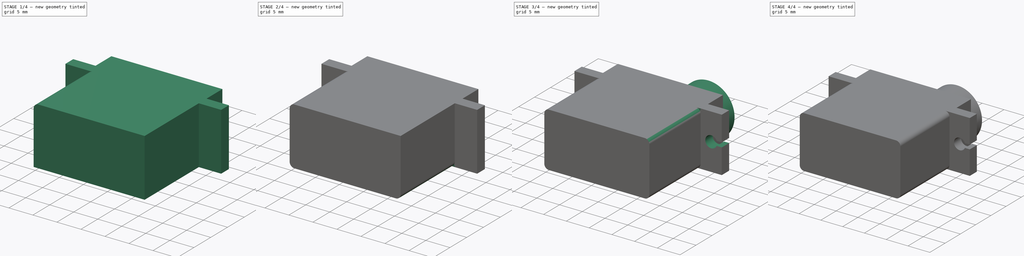
[diagram: build sequence overview — one tinted view per stage of 4, left to right]
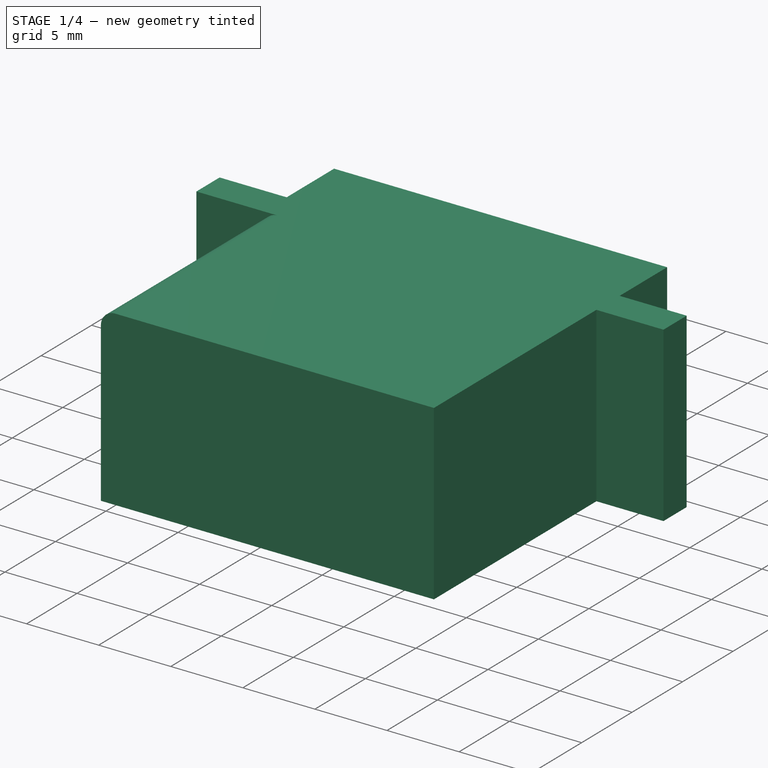
[diagram: stage 1 of 4 — iso view after this stage's code; geometry added in this stage tinted green]
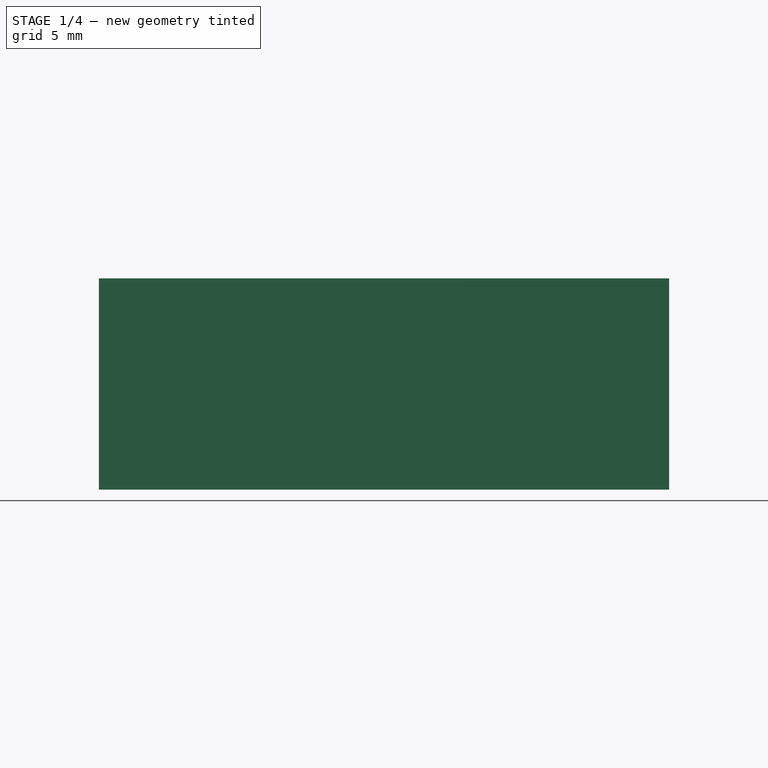
[diagram: stage 1 of 4 — front view after this stage's code; geometry added in this stage tinted green]
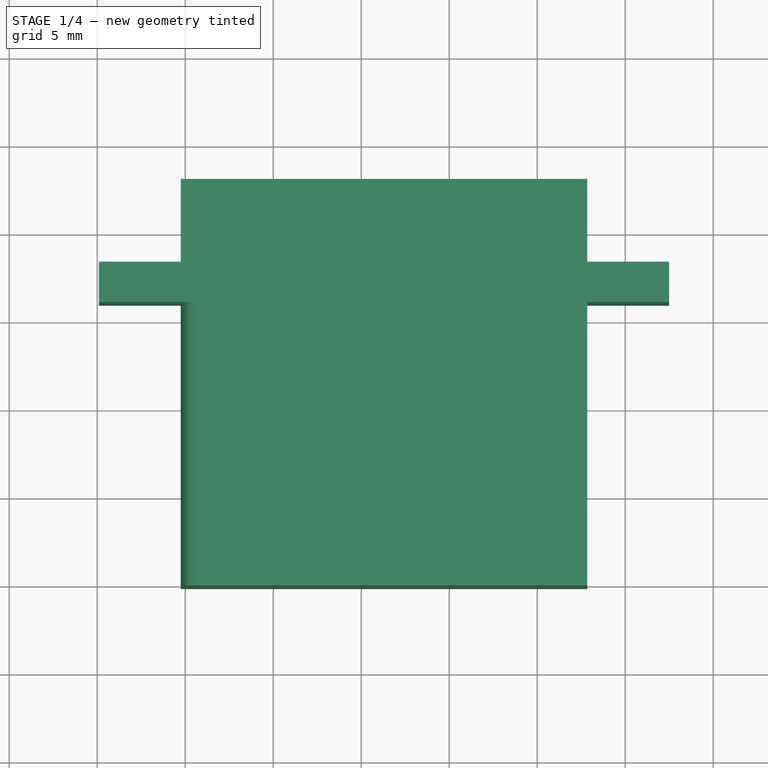
[diagram: stage 1 of 4 — top view after this stage's code; geometry added in this stage tinted green]
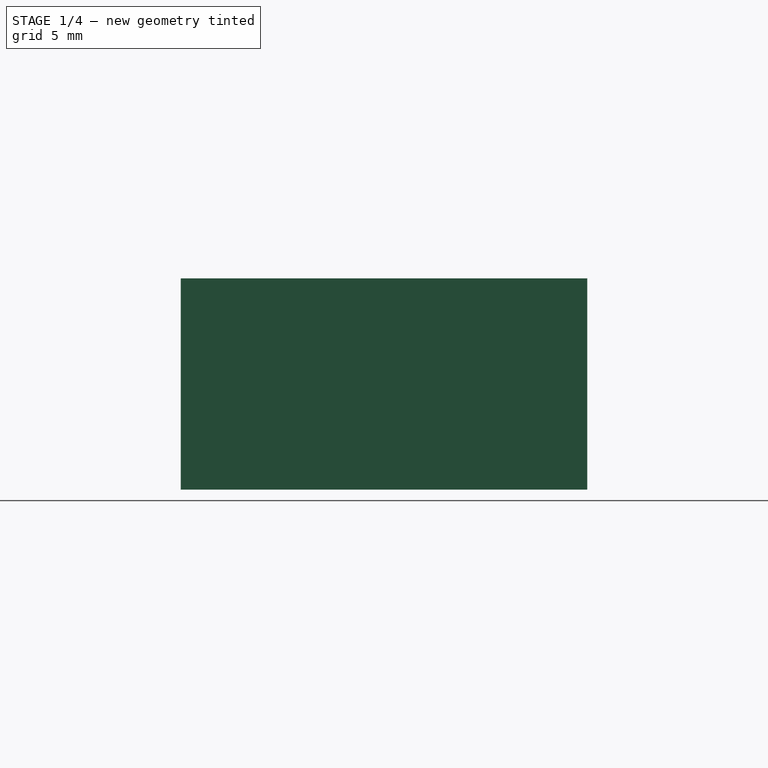
[diagram: stage 1 of 4 — right view after this stage's code; geometry added in this stage tinted green]
FCSTD DOCUMENT  (FreeCAD 0.15R4503 (Git))
Label: servo_hxt900
License: CC-BY 3.0
LicenseURL: http://creativecommons.org/licenses/by/3.0/
objects: Sketcher::SketchObject×5, PartDesign::Fillet×4, PartDesign::Pad×3, PartDesign::Pocket×2
note: 19 computed .brp shape members not serialized (recipe doc carries the construction recipe); baked Part::Feature solids carry a one-line shape summary decoded from their .brp

FEATURE [Sketcher::SketchObject] Sketch
  sketch-geometry (12):
    g0: LineSegment StartX=-15.2574 StartY=12.9721 StartZ=0 EndX=7.84256 EndY=12.9721 EndZ=0
    g1: LineSegment StartX=7.84256 StartY=12.9721 StartZ=0 EndX=7.84256 EndY=8.27206 EndZ=0
    g2: LineSegment StartX=7.84256 StartY=-10.1279 StartZ=0 EndX=-15.2574 EndY=-10.1279 EndZ=0
    g3: LineSegment StartX=-15.2574 StartY=-10.1279 StartZ=0 EndX=-15.2574 EndY=5.97206 EndZ=0
    g4: LineSegment StartX=-19.9074 StartY=8.27206 StartZ=0 EndX=-15.2574 EndY=8.27206 EndZ=0
    g5: LineSegment StartX=12.4926 StartY=8.27206 StartZ=0 EndX=12.4926 EndY=5.97206 EndZ=0
    g6: LineSegment StartX=12.4926 StartY=5.97206 StartZ=0 EndX=7.84256 EndY=5.97206 EndZ=0
    g7: LineSegment StartX=-19.9074 StartY=5.97206 StartZ=0 EndX=-19.9074 EndY=8.27206 EndZ=0
    g8: LineSegment StartX=7.84256 StartY=5.97206 StartZ=0 EndX=7.84256 EndY=-10.1279 EndZ=0
    g9: LineSegment StartX=7.84256 StartY=8.27206 StartZ=0 EndX=12.4926 EndY=8.27206 EndZ=0
    g10: LineSegment StartX=-15.2574 StartY=5.97206 StartZ=0 EndX=-19.9074 EndY=5.97206 EndZ=0
    g11: LineSegment StartX=-15.2574 StartY=8.27206 StartZ=0 EndX=-15.2574 EndY=12.9721 EndZ=0
  constraints (30):
    c: Coincident(g0,g1)
    c: Coincident(g8,g2)
    c: Coincident(g2,g3)
    c: Coincident(g11,g0)
    c: Horizontal(g0)
    c: Horizontal(g2)
    c: Vertical(g1)
    c: Vertical(g3)
    c: Distance(g2) = 23.1
    c: Coincident(g9,g5)
    c: Coincident(g5,g6)
    c: Coincident(g10,g7)
    c: Coincident(g7,g4)
    c: Horizontal(g4)
    c: Horizontal(g6)
    c: Vertical(g5)
    c: Vertical(g7)
    c: Distance(g5) = 2.3
    c: Tangent(g1,g8)
    c: Coincident(g9,g1)
    c: Tangent(g4,g9)
    c: Coincident(g6,g8)
    c: Tangent(g6,g10)
    c: Coincident(g3,g10)
    c: Coincident(g11,g4)
    c: Tangent(g3,g11)
    c: Distance(g4) = 4.65
    c: Distance(g9) = 4.65
    c: Distance(g0,g2) = 23.1
    c: Distance(g8) = 16.1
FEATURE [PartDesign::Pad] Pad
  Length = 12
  Length2 = 100
  Sketch = -> Sketch
  Type = 0
FEATURE [PartDesign::Fillet] Fillet
  Base = -> Pad [Edge25]
  Radius = 1
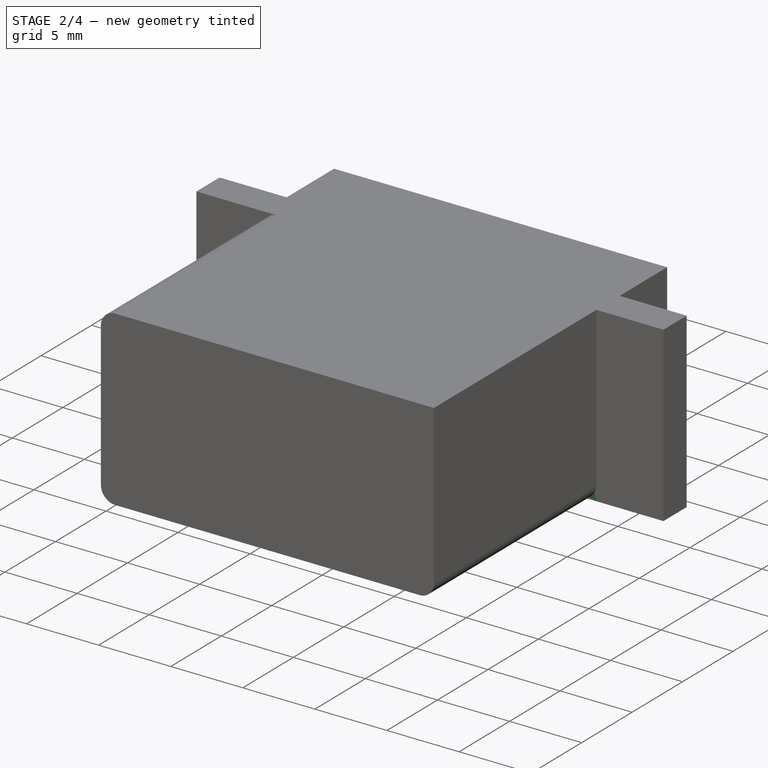
[diagram: stage 2 of 4 — iso view after this stage's code; geometry added in this stage tinted green]
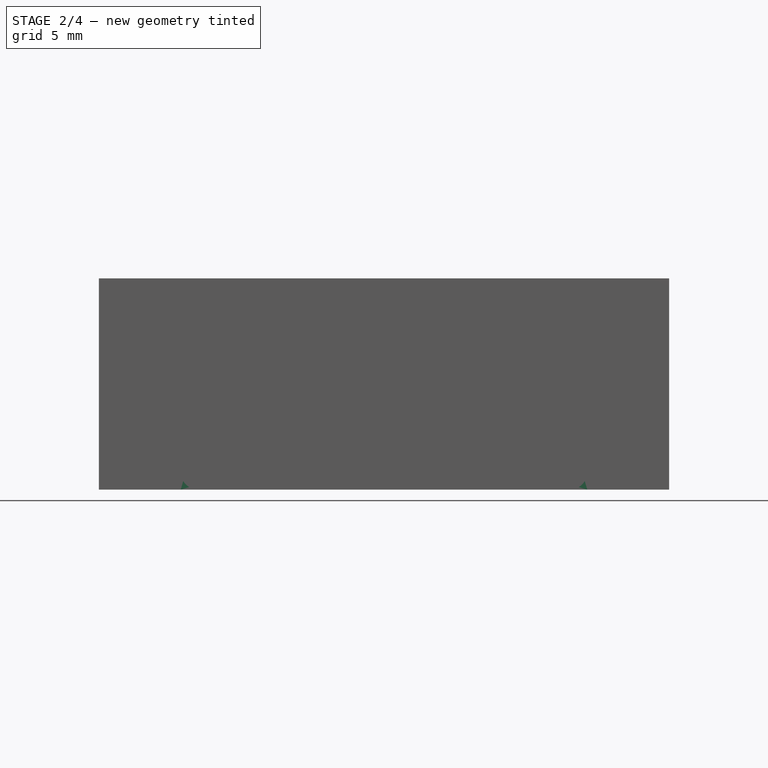
[diagram: stage 2 of 4 — front view after this stage's code; geometry added in this stage tinted green]
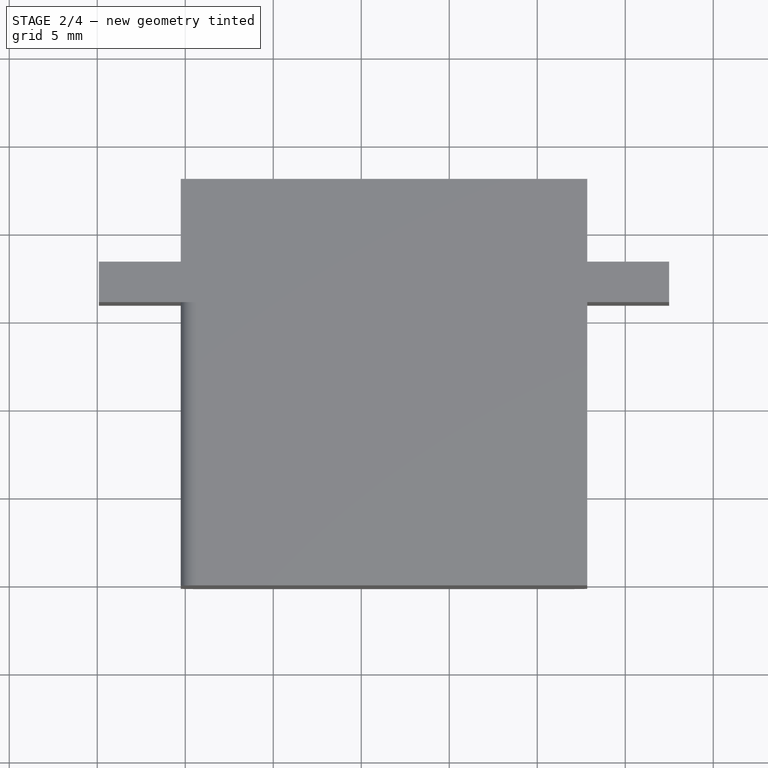
[diagram: stage 2 of 4 — top view after this stage's code; geometry added in this stage tinted green]
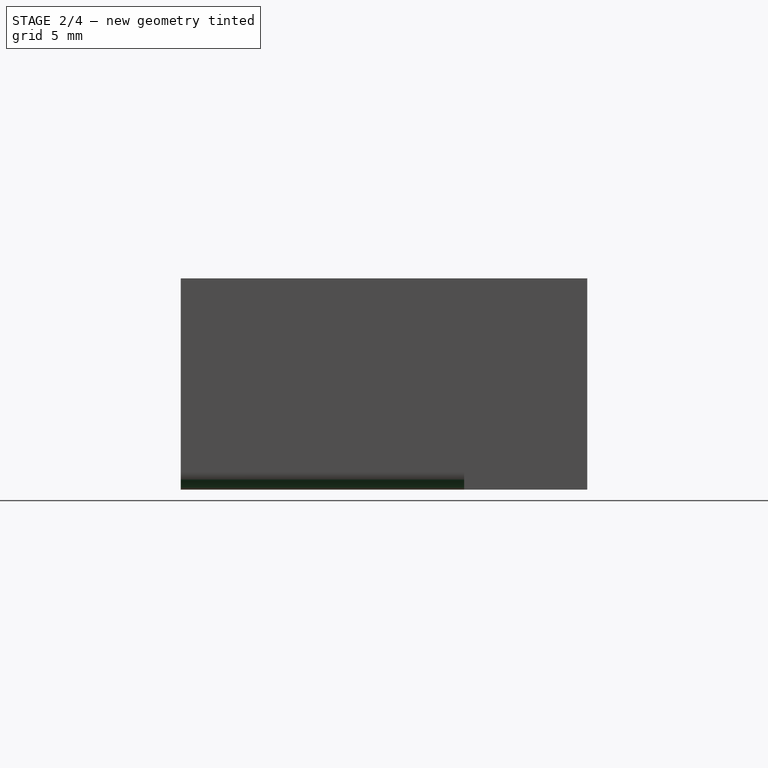
[diagram: stage 2 of 4 — right view after this stage's code; geometry added in this stage tinted green]
FEATURE [PartDesign::Fillet] Fillet001
  Base = -> Fillet [Edge7]
  Radius = 1
FEATURE [PartDesign::Fillet] Fillet002
  Base = -> Fillet001 [Edge14]
  Radius = 1
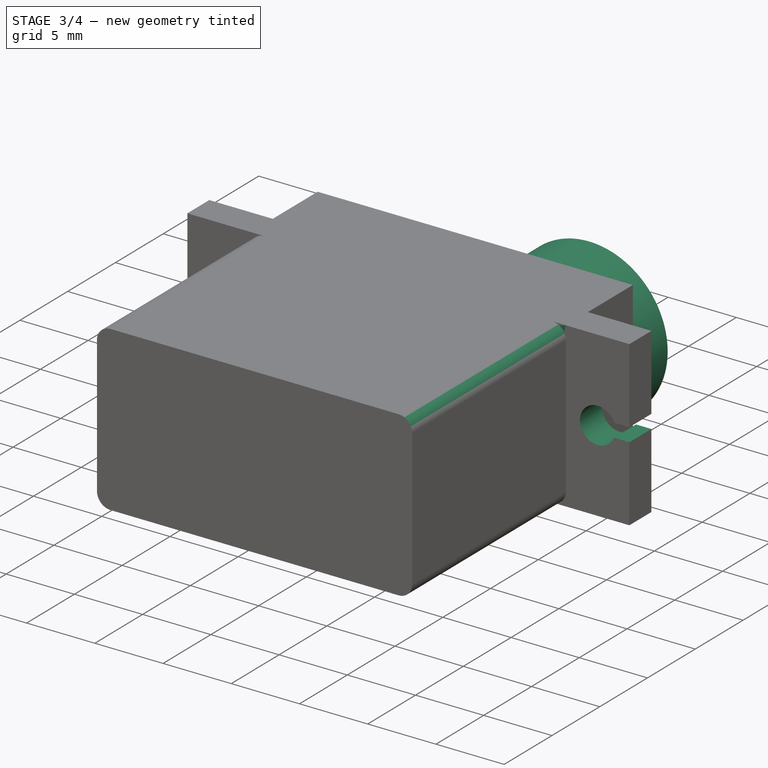
[diagram: stage 3 of 4 — iso view after this stage's code; geometry added in this stage tinted green]
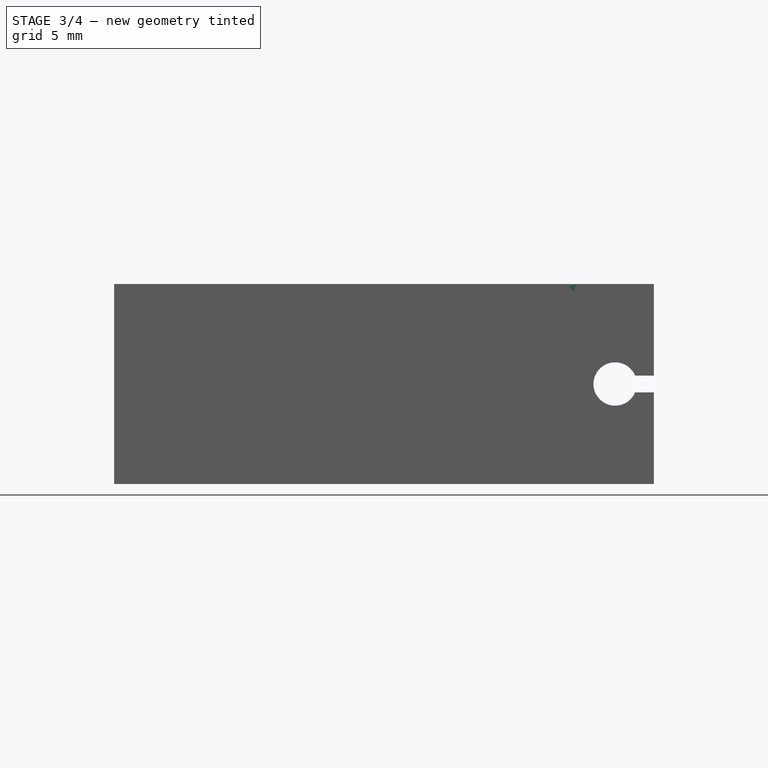
[diagram: stage 3 of 4 — front view after this stage's code; geometry added in this stage tinted green]
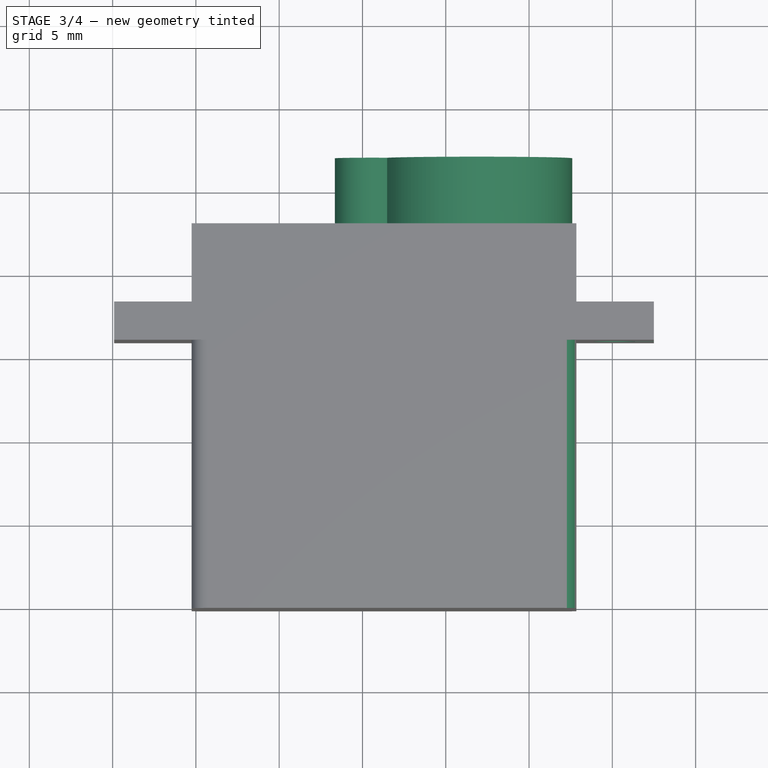
[diagram: stage 3 of 4 — top view after this stage's code; geometry added in this stage tinted green]
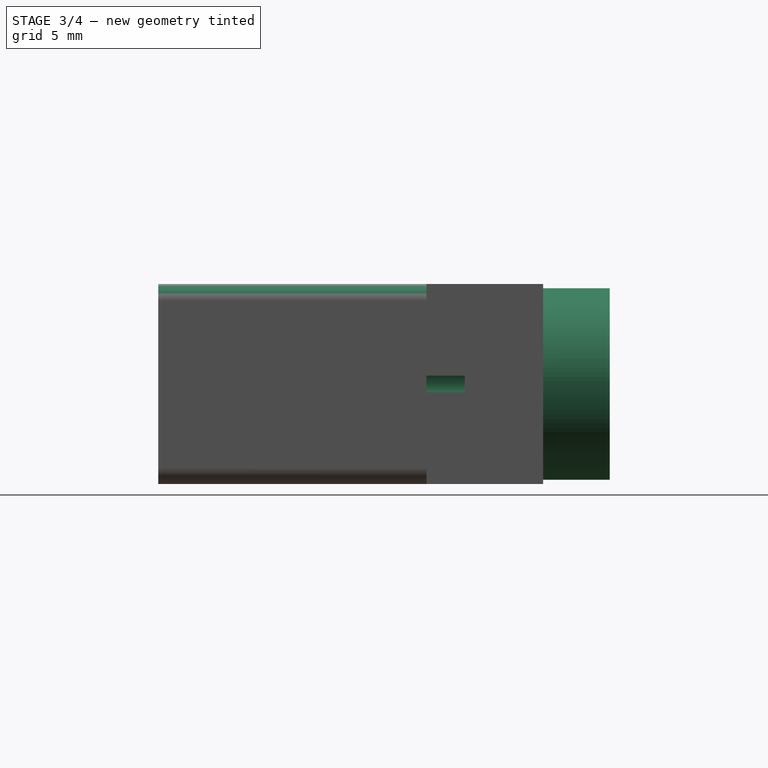
[diagram: stage 3 of 4 — right view after this stage's code; geometry added in this stage tinted green]
FEATURE [PartDesign::Fillet] Fillet003
  Base = -> Fillet002 [Edge26]
  Radius = 1
FEATURE [Sketcher::SketchObject] Sketch001
  ExternalGeometry = -> [Fillet003]
  Placement = pos=(0,8.27206,0) rot=(0,0.707107,0.707107;3.14159rad)
  Support = -> Fillet003 [Face14]
  sketch-geometry (4):
    g0: ArcOfCircle CenterX=-10.1681 CenterY=6 CenterZ=0 NormalX=0 NormalY=0 NormalZ=1 Radius=1.3 StartAngle=3.53638 EndAngle=9.02999
    g1: LineSegment StartX=-12.4926 StartY=6.5 StartZ=0 EndX=-11.3681 EndY=6.5 EndZ=0
    g2: LineSegment StartX=-11.3681 StartY=5.5 StartZ=0 EndX=-12.4926 EndY=5.5 EndZ=0
    g3: LineSegment StartX=-12.4926 StartY=5.5 StartZ=0 EndX=-12.4926 EndY=6.5 EndZ=0
  constraints (11):
    c: Coincident(g2,g3)
    c: Coincident(g3,g1)
    c: Horizontal(g1)
    c: Horizontal(g2)
    c: Vertical(g3)
    c: PointOnObject(g1,g-3)
    c: Distance(g2,g1) = 1
    c: Radius(g0) = 1.3
    c: Distance(g0,g-4) = 6
    c: Coincident(g2,g0)
    c: Coincident(g1,g0)
FEATURE [PartDesign::Pocket] Pocket
  Length = 5
  Sketch = -> Sketch001
  Type = 0
FEATURE [Sketcher::SketchObject] Sketch003
  ExternalGeometry = -> [Pocket]
  Placement = pos=(0,12.9721,0) rot=(0,0.707107,0.707107;3.14159rad)
  Support = -> Pocket [Face18]
  sketch-geometry (2):
    g0: ArcOfCircle CenterX=-1.84256 CenterY=6 CenterZ=0 NormalX=0 NormalY=0 NormalZ=1 Radius=5.75 StartAngle=0.368015 EndAngle=5.91517
    g1: ArcOfCircle CenterX=4.40744 CenterY=6 CenterZ=0 NormalX=0 NormalY=0 NormalZ=1 Radius=2.25 StartAngle=4.30813 EndAngle=8.25824
  constraints (9):
    c: Radius(g0) = 5.75
    c: Radius(g1) = 2.25
    c: Distance(g1,g-3) = 12.25
    c: Distance(g0,g-4) = 6
    c: Distance(g0,g-3) = 6
    c: Distance(g1,g-4) = 6
    c: PointOnObject(g0,g1)
    c: PointOnObject(g0,g1)
    c: Coincident(g0,g1)
FEATURE [PartDesign::Pad] Pad001
  Length = 4
  Length2 = 100
  Sketch = -> Sketch003
  Type = 0
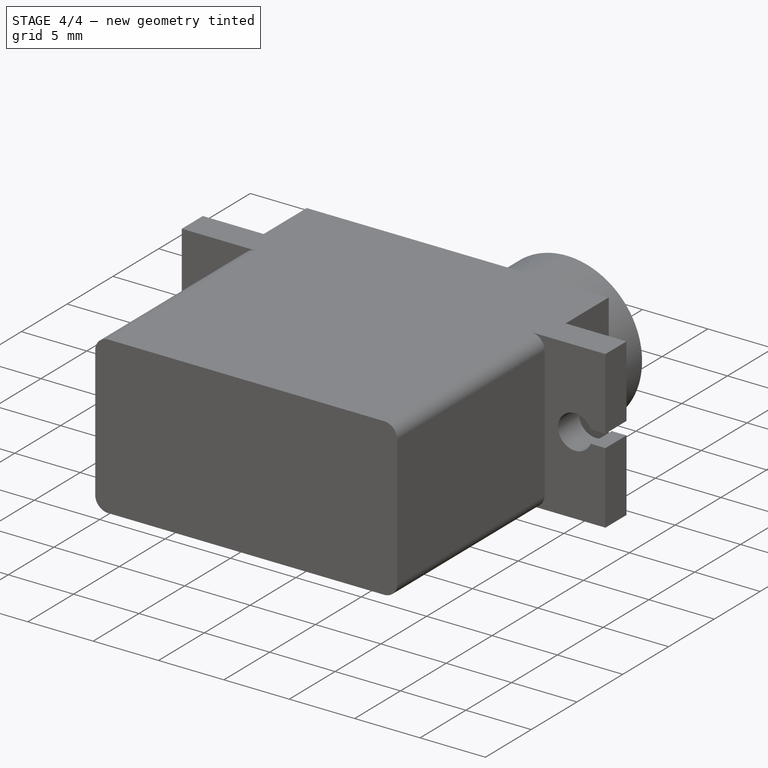
[diagram: stage 4 of 4 — iso view after this stage's code; geometry added in this stage tinted green]
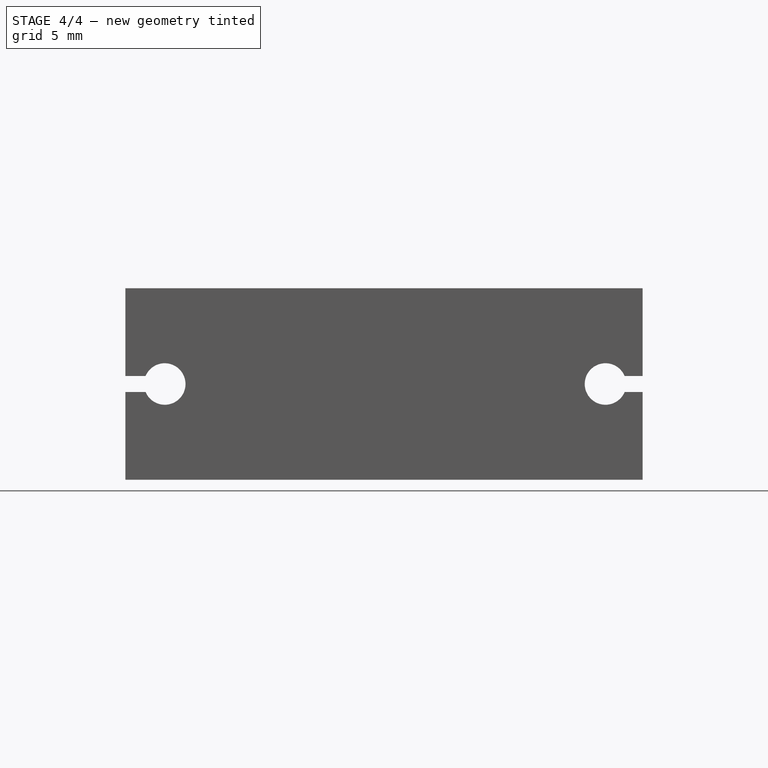
[diagram: stage 4 of 4 — front view after this stage's code; geometry added in this stage tinted green]
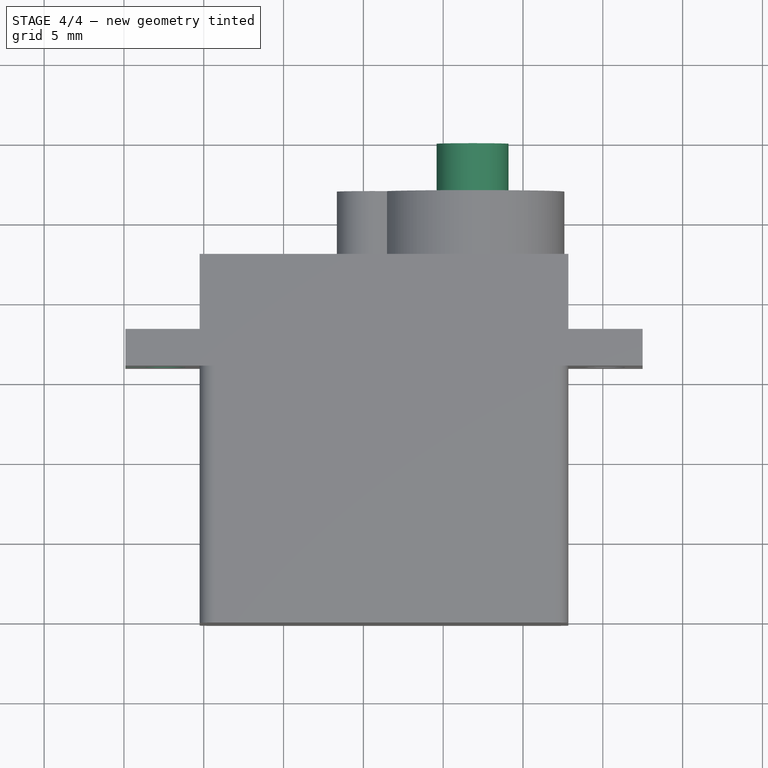
[diagram: stage 4 of 4 — top view after this stage's code; geometry added in this stage tinted green]
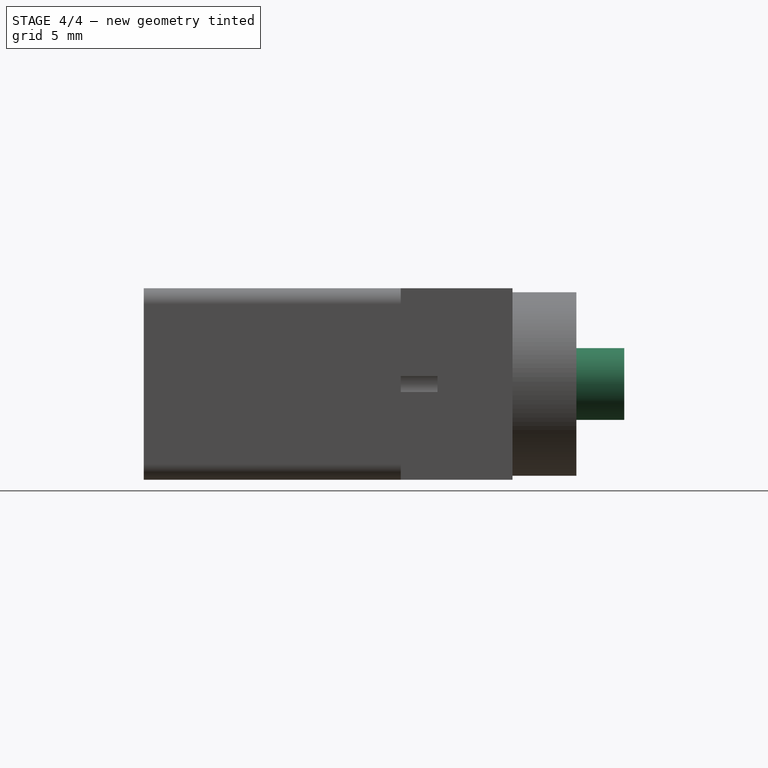
[diagram: stage 4 of 4 — right view after this stage's code; geometry added in this stage tinted green]
FEATURE [Sketcher::SketchObject] Sketch004
  ExternalGeometry = -> [Pad001]
  Placement = pos=(0,16.9721,0) rot=(0,0.707107,0.707107;3.14159rad)
  Support = -> Pad001 [Face25]
  sketch-geometry (1):
    g0: Circle CenterX=-1.84256 CenterY=6 CenterZ=0 NormalX=0 NormalY=0 NormalZ=1 Radius=2.25
  constraints (2):
    c: Coincident(g0,g-3)
    c: Radius(g0) = 2.25
FEATURE [PartDesign::Pad] Pad002
  Length = 3
  Length2 = 100
  Sketch = -> Sketch004
  Type = 0
FEATURE [Sketcher::SketchObject] Sketch005
  ExternalGeometry = -> [Pad002]
  Placement = pos=(0,8.27206,0) rot=(0,0.707107,0.707107;3.14159rad)
  Support = -> Pad002 [Face15]
  sketch-geometry (4):
    g0: ArcOfCircle CenterX=17.4434 CenterY=6 CenterZ=0 NormalX=0 NormalY=0 NormalZ=1 Radius=1.3 StartAngle=0.394791 EndAngle=5.88839
    g1: LineSegment StartX=18.6434 StartY=6.5 StartZ=0 EndX=19.9074 EndY=6.5 EndZ=0
    g2: LineSegment StartX=19.9074 StartY=6.5 StartZ=0 EndX=19.9074 EndY=5.5 EndZ=0
    g3: LineSegment StartX=19.9074 StartY=5.5 StartZ=0 EndX=18.6434 EndY=5.5 EndZ=0
  constraints (11):
    c: Coincident(g1,g2)
    c: Coincident(g2,g3)
    c: Horizontal(g1)
    c: Horizontal(g3)
    c: Vertical(g2)
    c: PointOnObject(g2,g-3)
    c: Distance(g2,g1) = 1
    c: Radius(g0) = 1.3
    c: Distance(g0,g-4) = 6
    c: Coincident(g3,g0)
    c: Coincident(g1,g0)
FEATURE [PartDesign::Pocket] Pocket001
  Length = 5
  Sketch = -> Sketch005
  Type = 0
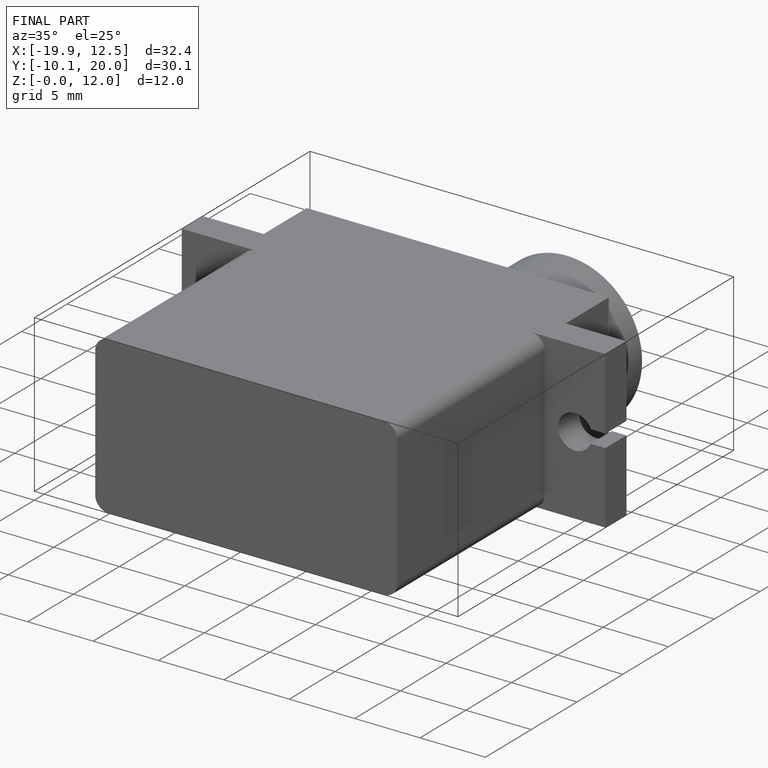
[diagram: finished part — iso view with bounding-box wireframe]
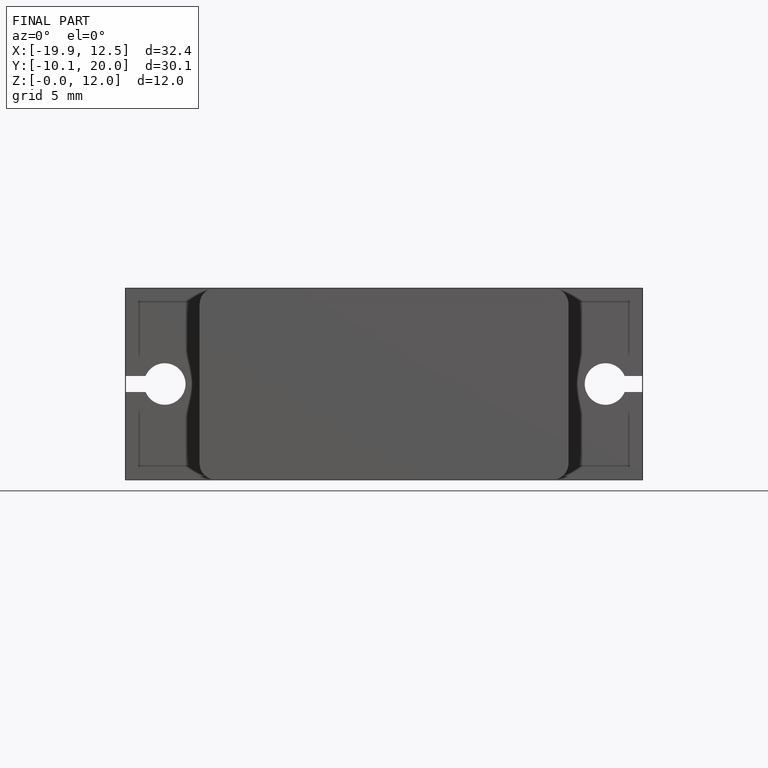
[diagram: finished part — front view with bounding-box wireframe]
